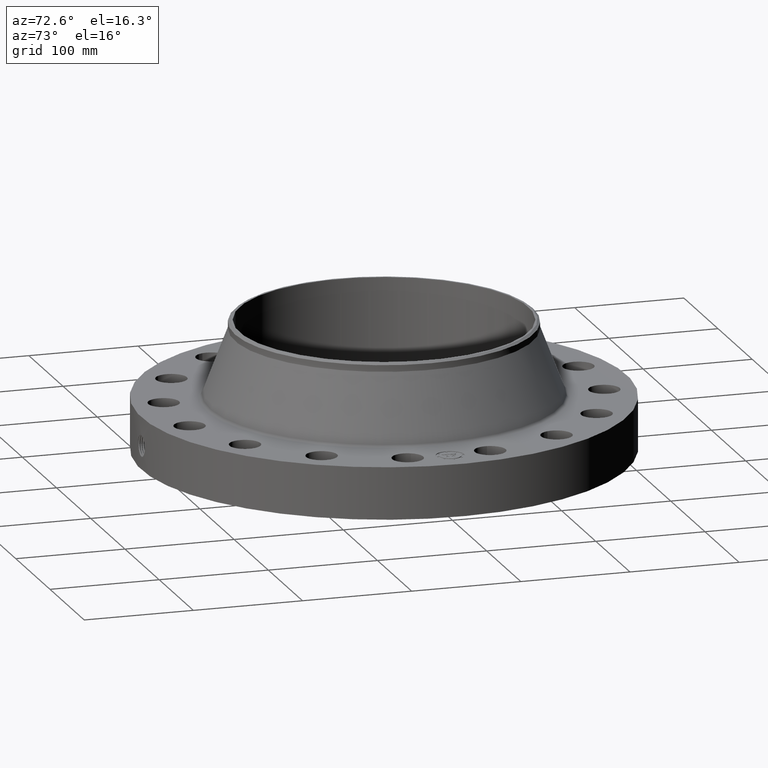
[diagram: clean part render]
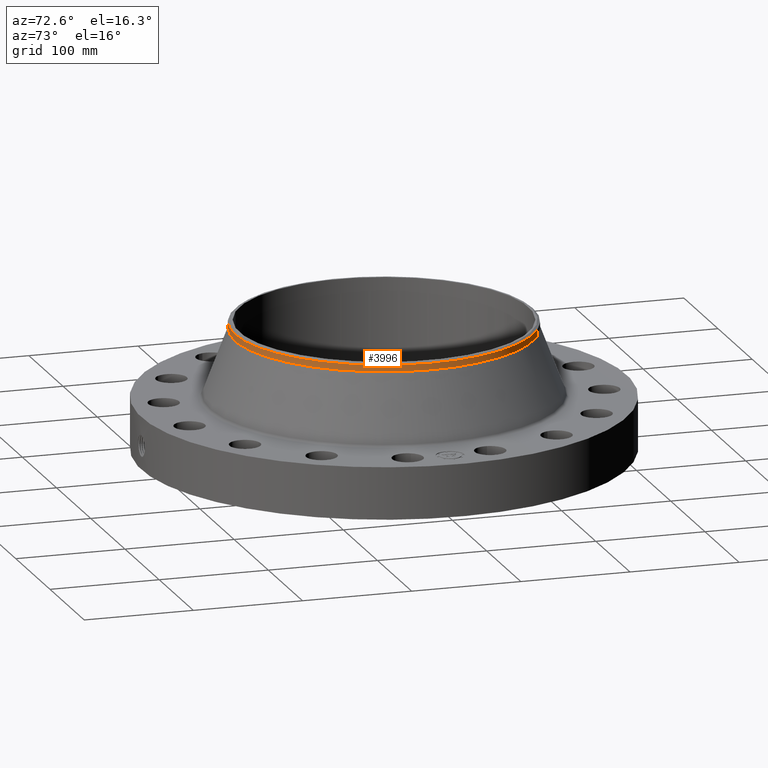
[diagram: same view with one face highlighted and labeled with its STEP entity id]
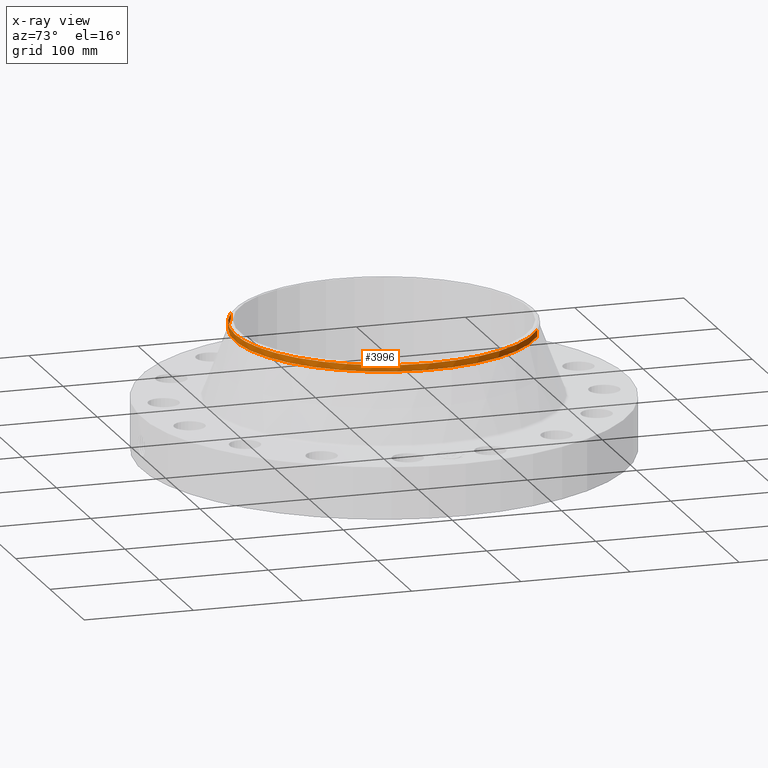
[diagram: x-ray of the same camera — body ghosted, the highlighted face saturated]
A machine part, auxiliary view. The second image highlights one B-rep face of the part: STEP entity #3996.
The next image is the same camera in x-ray: the body ghosted, the highlighted face saturated — about 0% of this face is hidden behind the body in this view.
In plain terms, the highlighted cylindrical surface (partial cylindrical patch) has radius 136.525 mm, axis along (0, 0, -1).
Its self-contained STEP definition (entity closure, byte-faithful):
#3183=AXIS2_PLACEMENT_3D('Circle Axis2P3D',#3181,#3182,$) ;
#3638=AXIS2_PLACEMENT_3D('Circle Axis2P3D',#3636,#3637,$) ;
#3651=AXIS2_PLACEMENT_3D('Circle Axis2P3D',#3649,#3650,$) ;
#3977=AXIS2_PLACEMENT_3D('Cylinder Axis2P3D',#3974,#3975,#3976) ;
#3178=CARTESIAN_POINT('Vertex',(2.57691227001,4.71700627018,4.37759002243)) ;
#3181=CARTESIAN_POINT('Axis2P3D Location',(0.,0.,4.37759002243)) ;
#3185=CARTESIAN_POINT('Vertex',(-2.57691227001,-4.71700627018,4.37759002243)) ;
#3619=CARTESIAN_POINT('Vertex',(2.57691227001,-4.71700627018,4.61381049487)) ;
#3633=CARTESIAN_POINT('Vertex',(-2.57691227001,-4.71700627018,4.61381049487)) ;
#3636=CARTESIAN_POINT('Axis2P3D Location',(0.,0.,4.61381049487)) ;
#3649=CARTESIAN_POINT('Axis2P3D Location',(0.,0.,4.61381049487)) ;
#3653=CARTESIAN_POINT('Vertex',(2.57691227001,4.71700627018,4.61381049487)) ;
#3974=CARTESIAN_POINT('Axis2P3D Location',(0.,0.,2.37000000001)) ;
#3979=CARTESIAN_POINT('Line Origine',(-2.57691227001,-4.71700627018,4.49570025865)) ;
#3984=CARTESIAN_POINT('Line Origine',(2.57691227001,4.71700627018,4.49570025865)) ;
#3182=DIRECTION('Axis2P3D Direction',(0.,0.,-0.0393700787402)) ;
#3637=DIRECTION('Axis2P3D Direction',(0.,0.,-0.0393700787402)) ;
#3650=DIRECTION('Axis2P3D Direction',(0.,0.,-0.0393700787402)) ;
#3975=DIRECTION('Axis2P3D Direction',(0.,0.,-0.0393700787402)) ;
#3976=DIRECTION('Axis2P3D XDirection',(-0.0188750212049,-0.0345504945626,0.)) ;
#3980=DIRECTION('Vector Direction',(0.,0.,-0.0393700787402)) ;
#3985=DIRECTION('Vector Direction',(0.,0.,-0.0393700787402)) ;
#3981=VECTOR('Line Direction',#3980,0.0393700787402) ;
#3986=VECTOR('Line Direction',#3985,0.0393700787402) ;
#3990=ORIENTED_EDGE('',*,*,#3983,.F.) ;
#3991=ORIENTED_EDGE('',*,*,#3187,.F.) ;
#3992=ORIENTED_EDGE('',*,*,#3988,.T.) ;
#3993=ORIENTED_EDGE('',*,*,#3655,.F.) ;
#3994=ORIENTED_EDGE('',*,*,#3640,.T.) ;
#3996=ADVANCED_FACE('PartBody',(#3995),#3978,.T.) ;
#3184=CIRCLE('generated circle',#3183,5.37500000002) ;
#3639=CIRCLE('generated circle',#3638,5.37500000002) ;
#3652=CIRCLE('generated circle',#3651,5.37500000002) ;
#3978=CYLINDRICAL_SURFACE('generated cylinder',#3977,5.37500000002) ;
#3187=EDGE_CURVE('',#3179,#3186,#3184,.T.) ;
#3640=EDGE_CURVE('',#3620,#3634,#3639,.T.) ;
#3655=EDGE_CURVE('',#3620,#3654,#3652,.F.) ;
#3983=EDGE_CURVE('',#3186,#3634,#3982,.F.) ;
#3988=EDGE_CURVE('',#3179,#3654,#3987,.F.) ;
#3989=EDGE_LOOP('',(#3990,#3991,#3992,#3993,#3994)) ;
#3995=FACE_OUTER_BOUND('',#3989,.T.) ;
#3982=LINE('Line',#3979,#3981) ;
#3987=LINE('Line',#3984,#3986) ;
#3179=VERTEX_POINT('',#3178) ;
#3186=VERTEX_POINT('',#3185) ;
#3620=VERTEX_POINT('',#3619) ;
#3634=VERTEX_POINT('',#3633) ;
#3654=VERTEX_POINT('',#3653) ;